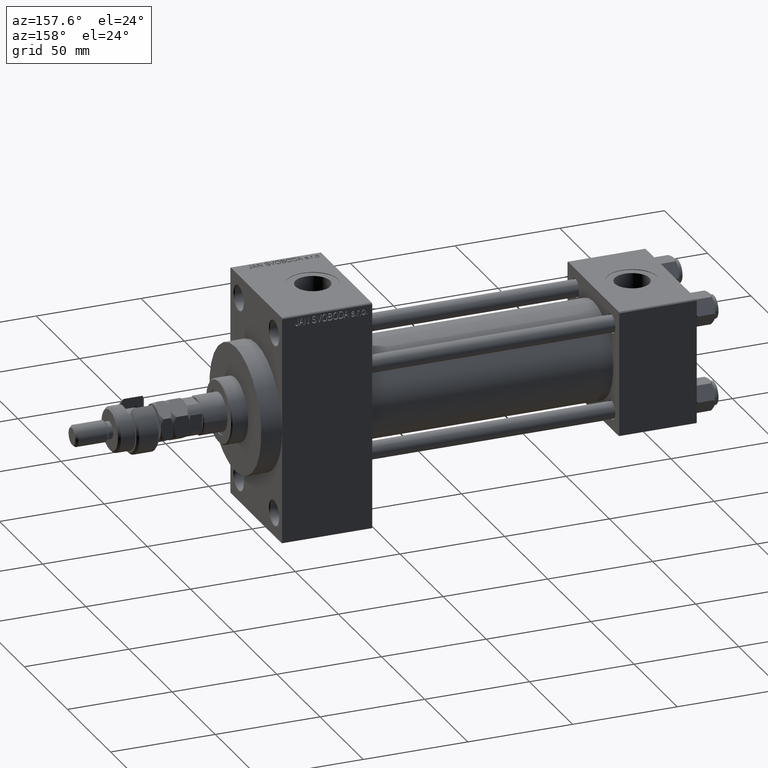
[diagram: clean part render]
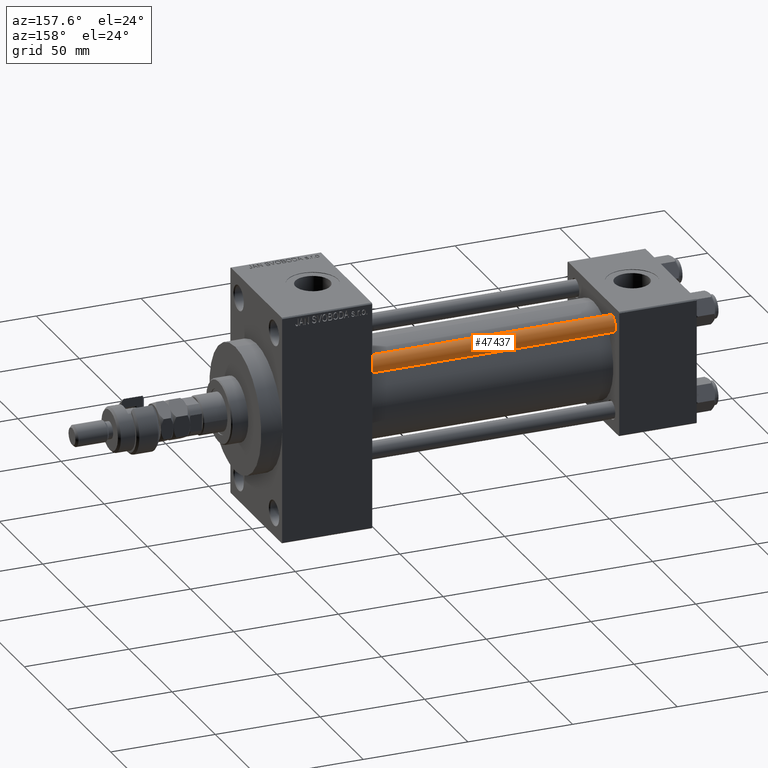
[diagram: same view with one face highlighted and labeled with its STEP entity id]
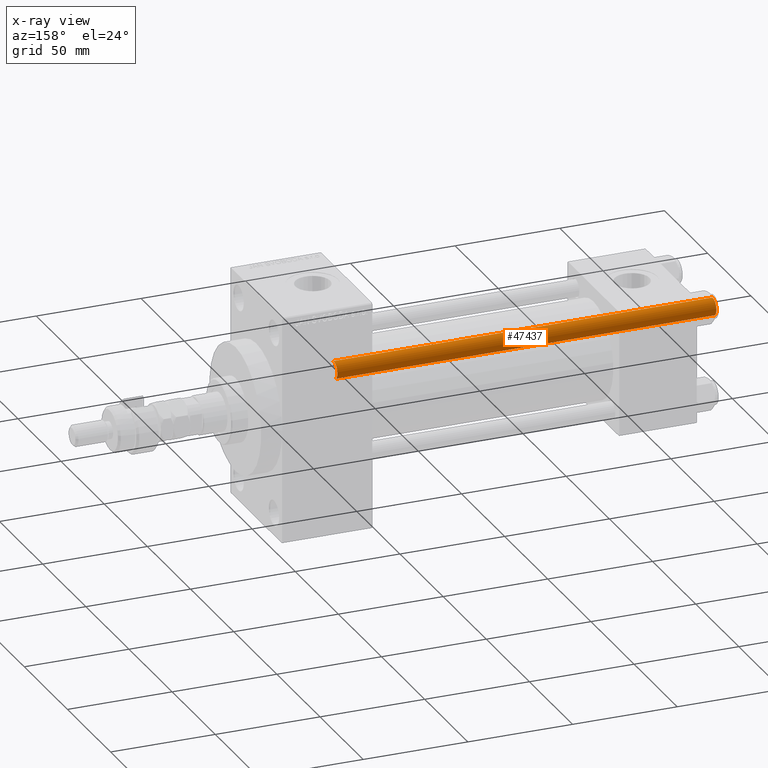
[diagram: x-ray of the same camera — body ghosted, the highlighted face saturated]
A machine part, auxiliary view. The second image highlights one B-rep face of the part: STEP entity #47437.
The next image is the same camera in x-ray: the body ghosted, the highlighted face saturated — about 0% of this face is hidden behind the body in this view.
In plain terms, the highlighted cylindrical surface (edge-blend (fillet) strip) has radius 4 mm, axis along (-1, -0, 0).
Its self-contained STEP definition (entity closure, byte-faithful):
#720 = LINE ( 'NONE', #12626, #29706 ) ;
#918 = VERTEX_POINT ( 'NONE', #29389 ) ;
#1912 = CARTESIAN_POINT ( 'NONE',  ( 0.000000000000000000, 0.000000000000000000, 182.0000000000000000 ) ) ;
#6198 = DIRECTION ( 'NONE',  ( -0.000000000000000000, -0.000000000000000000, -1.000000000000000000 ) ) ;
#6410 = AXIS2_PLACEMENT_3D ( 'NONE', #1912, #6198, #32787 ) ;
#7648 = DIRECTION ( 'NONE',  ( 1.000000000000000000, 0.000000000000000000, 0.000000000000000000 ) ) ;
#11482 = VERTEX_POINT ( 'NONE', #12839 ) ;
#12342 = CARTESIAN_POINT ( 'NONE',  ( -4.000000000000000000, 0.000000000000000000, 182.0000000000000000 ) ) ;
#12505 = EDGE_CURVE ( 'NONE', #918, #41631, #720, .T. ) ;
#12626 = CARTESIAN_POINT ( 'NONE',  ( 4.000000000000000000, 4.898587196589412829E-16, 182.0000000000000000 ) ) ;
#12839 = CARTESIAN_POINT ( 'NONE',  ( -4.000000000000000000, 0.000000000000000000, 181.5000000000000284 ) ) ;
#14093 = EDGE_CURVE ( 'NONE', #41631, #41864, #42600, .T. ) ;
#16376 = DIRECTION ( 'NONE',  ( -0.000000000000000000, -0.000000000000000000, -1.000000000000000000 ) ) ;
#17399 = EDGE_CURVE ( 'NONE', #11482, #41864, #31561, .T. ) ;
#17914 = ORIENTED_EDGE ( 'NONE', *, *, #14093, .T. ) ;
#19646 = CARTESIAN_POINT ( 'NONE',  ( 4.000000000000000000, 4.898587196589412829E-16, 0.4999999999999726885 ) ) ;
#20218 = DIRECTION ( 'NONE',  ( 1.000000000000000000, 0.000000000000000000, 0.000000000000000000 ) ) ;
#20464 = CARTESIAN_POINT ( 'NONE',  ( 0.000000000000000000, 0.000000000000000000, 181.5000000000000284 ) ) ;
#24252 = DIRECTION ( 'NONE',  ( -0.000000000000000000, -0.000000000000000000, -1.000000000000000000 ) ) ;
#24316 = EDGE_CURVE ( 'NONE', #11482, #918, #47149, .T. ) ;
#29389 = CARTESIAN_POINT ( 'NONE',  ( 4.000000000000000000, 4.898587196589412829E-16, 181.5000000000000284 ) ) ;
#29612 = ORIENTED_EDGE ( 'NONE', *, *, #24316, .T. ) ;
#29706 = VECTOR ( 'NONE', #24252, 1000.000000000000000 ) ;
#30435 = CARTESIAN_POINT ( 'NONE',  ( 0.000000000000000000, 0.000000000000000000, 0.4999999999999726885 ) ) ;
#30974 = AXIS2_PLACEMENT_3D ( 'NONE', #20464, #43499, #20218 ) ;
#31561 = LINE ( 'NONE', #12342, #32341 ) ;
#32341 = VECTOR ( 'NONE', #16376, 1000.000000000000000 ) ;
#32787 = DIRECTION ( 'NONE',  ( -1.000000000000000000, 0.000000000000000000, 0.000000000000000000 ) ) ;
#37073 = FACE_OUTER_BOUND ( 'NONE', #45560, .T. ) ;
#39402 = ORIENTED_EDGE ( 'NONE', *, *, #17399, .F. ) ;
#40616 = CYLINDRICAL_SURFACE ( 'NONE', #6410, 4.000000000000000000 ) ;
#41631 = VERTEX_POINT ( 'NONE', #19646 ) ;
#41864 = VERTEX_POINT ( 'NONE', #45331 ) ;
#41954 = ORIENTED_EDGE ( 'NONE', *, *, #12505, .T. ) ;
#42600 = CIRCLE ( 'NONE', #43404, 4.000000000000000000 ) ;
#43404 = AXIS2_PLACEMENT_3D ( 'NONE', #30435, #45597, #7648 ) ;
#43499 = DIRECTION ( 'NONE',  ( 0.000000000000000000, 0.000000000000000000, -1.000000000000000000 ) ) ;
#45331 = CARTESIAN_POINT ( 'NONE',  ( -4.000000000000000000, 0.000000000000000000, 0.4999999999999726885 ) ) ;
#45560 = EDGE_LOOP ( 'NONE', ( #29612, #41954, #17914, #39402 ) ) ;
#45597 = DIRECTION ( 'NONE',  ( -0.000000000000000000, -0.000000000000000000, 1.000000000000000000 ) ) ;
#47149 = CIRCLE ( 'NONE', #30974, 4.000000000000000000 ) ;
#47437 = ADVANCED_FACE ( 'NONE', ( #37073 ), #40616, .T. ) ;